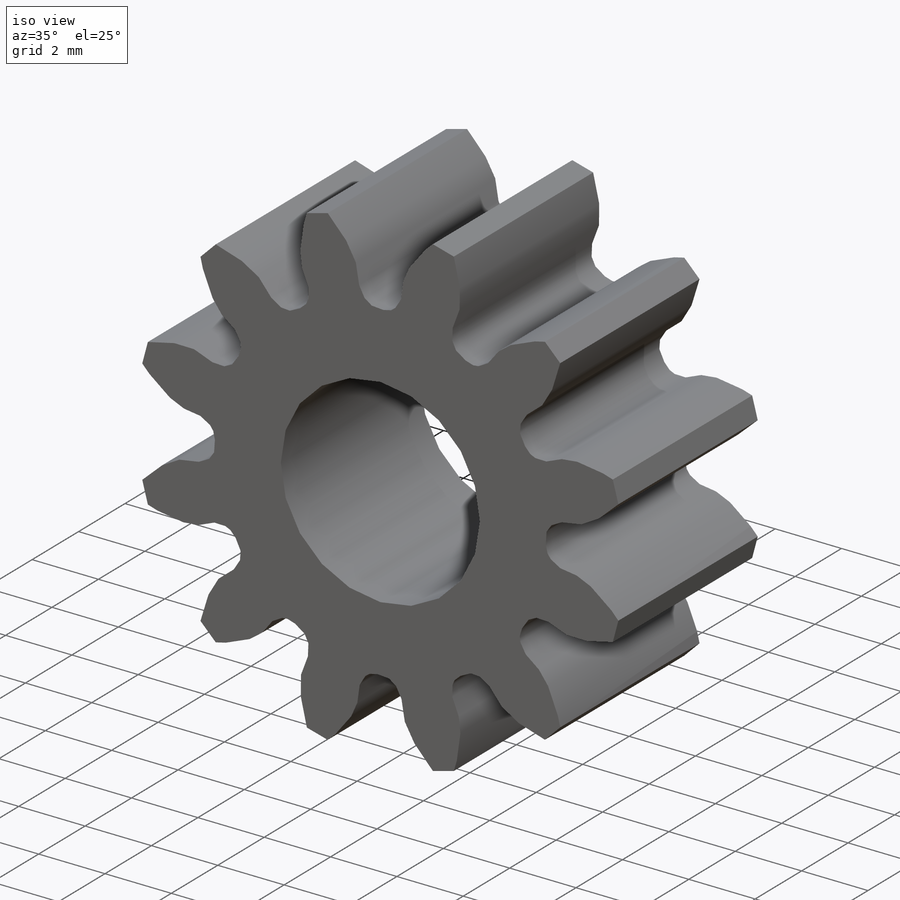
[diagram: iso view]
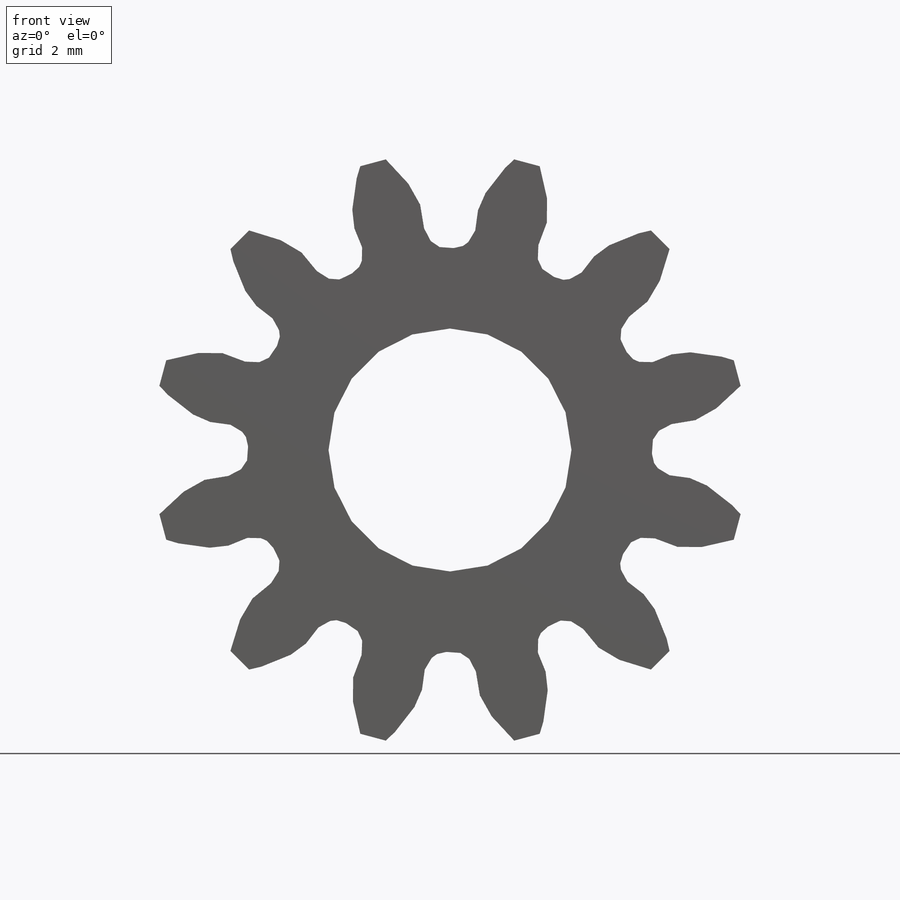
[diagram: front view]
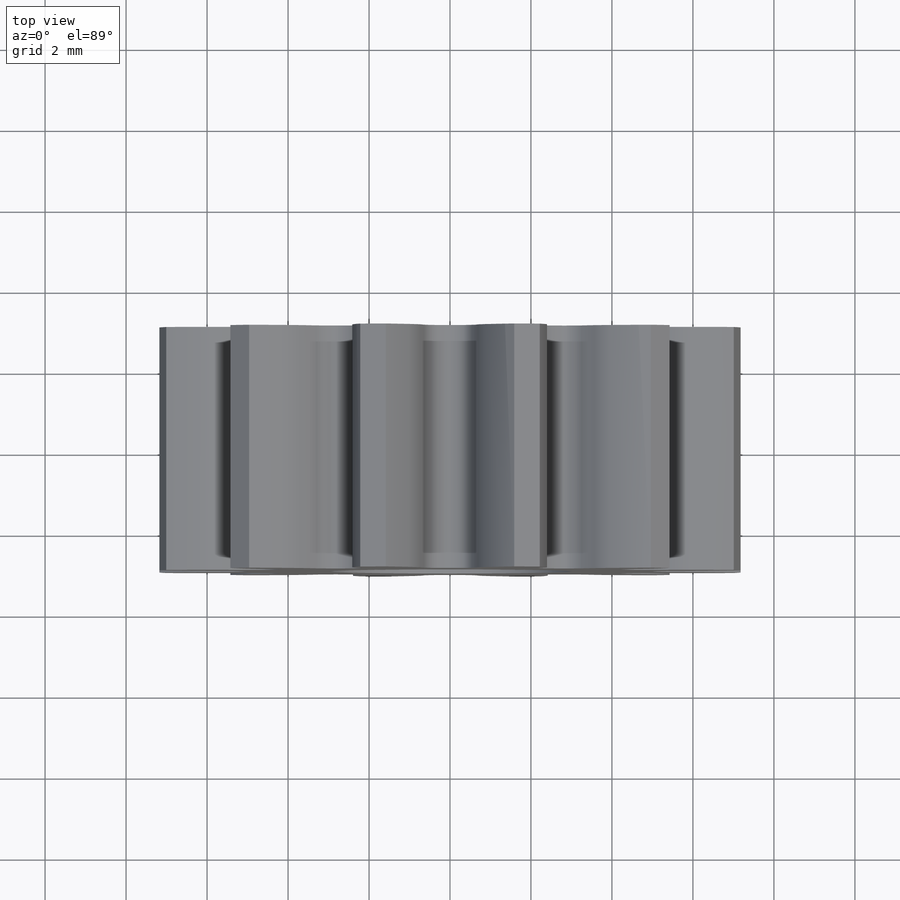
[diagram: top view]
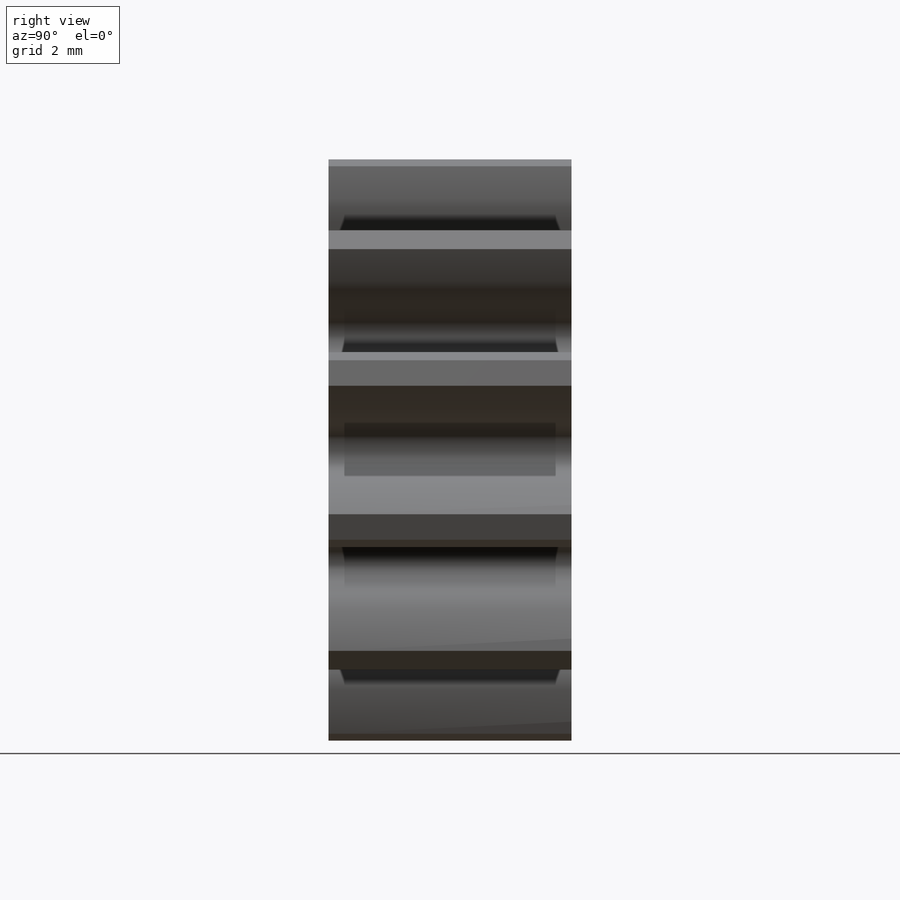
[diagram: right view]
SOLIDWORKS PART (.sldprt)
format: sldprt  version: not decoded by parser v0  size: 216,576 bytes
history: native  units: mm
features: sketch x3, material x1, revolve x1, cut_extrude x1, pattern_circular x1, cut_revolve x1 (+11 scaffold rows collapsed)
feature tree (19):
  scaffold x11  (default folders/planes/origin — collapsed)
  material  "Material <not specified>"
  sketch  "SketchRevolveSpur01"  dims[Side1=3.0mm OutsideRadius=7.35mm Side2=3.0mm]
  revolve  "Spur01"  Angle=360deg
  sketch  "SketchToothSpur01"
  cut_extrude  "ToothExtrudeCutSpur01"  Depth=3mm
  pattern_circular  "PatternSpur01"  Count=12 Angle=30deg
  sketch  "BoreRevolveSketch"  dims[BoreSide1=3.0mm TaperSide1=3.0mm BoreSide2=3.0mm TaperSide2=3.0mm]
  cut_revolve  "BoreRevolveCut"  Angle=360deg
decode coverage: 6 of 7 modeling features carry decoded parameters
note: suppression state not decoded; provenance and decode notes live in map.json
